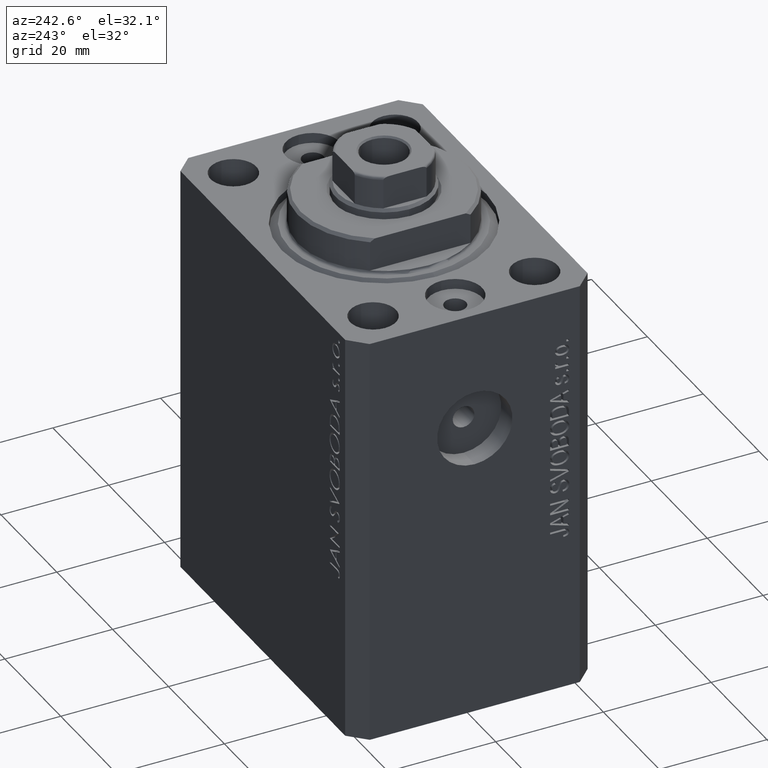
[diagram: clean part render]
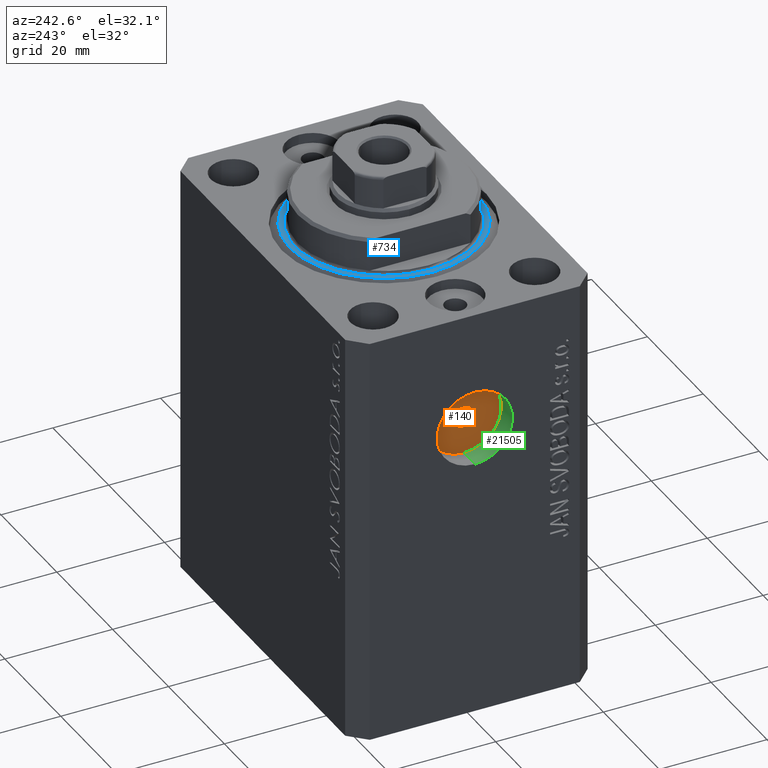
[diagram: same view with three faces highlighted in distinct colors, each labeled with its STEP entity id]
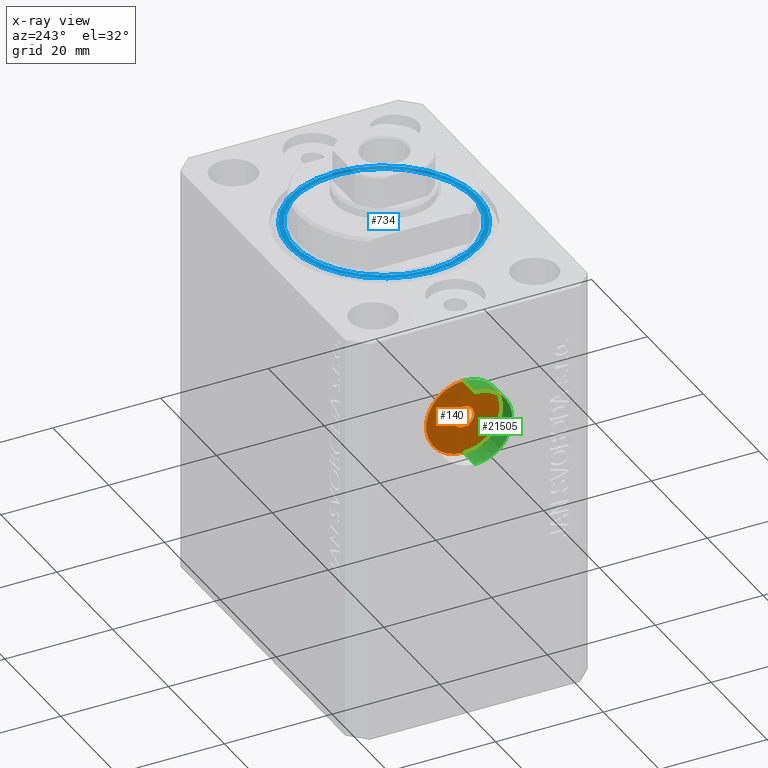
[diagram: x-ray of the same camera — body ghosted, the three highlighted faces saturated]
A machine part, auxiliary view with three faces highlighted in distinct colors.
The next image is the same camera in x-ray (body ghosted, the three faces saturated) — at least one of them is partly hidden behind the body in this view.
Their STEP definitions:

[orange] entity #140 — the highlighted planar face has unit normal (-1, 0, 0).
#140 = ADVANCED_FACE ( 'NONE', ( #27877, #10974 ), #24511, .T. ) ;
#4254 = DIRECTION ( 'NONE',  ( -1.000000000000000000, 0.000000000000000000, 0.000000000000000000 ) ) ;
#4823 = DIRECTION ( 'NONE',  ( 0.000000000000000000, 0.000000000000000000, 1.000000000000000000 ) ) ;
#5187 = DIRECTION ( 'NONE',  ( 0.000000000000000000, 0.000000000000000000, 1.000000000000000000 ) ) ;
#5305 = EDGE_CURVE ( 'NONE', #6242, #37633, #43434, .T. ) ;
#5861 = CARTESIAN_POINT ( 'NONE',  ( -28.49999999999650413, 0.000000000000000000, -22.00000000000000000 ) ) ;
#6242 = VERTEX_POINT ( 'NONE', #22571 ) ;
#6794 = EDGE_LOOP ( 'NONE', ( #33776, #37909 ) ) ;
#7648 = EDGE_LOOP ( 'NONE', ( #23320, #25348 ) ) ;
#7690 = EDGE_CURVE ( 'NONE', #40046, #35507, #10095, .T. ) ;
#10095 = CIRCLE ( 'NONE', #27370, 6.999999999999999112 ) ;
#10311 = CIRCLE ( 'NONE', #16064, 1.999999999999998224 ) ;
#10746 = CIRCLE ( 'NONE', #39476, 6.999999999999999112 ) ;
#10974 = FACE_OUTER_BOUND ( 'NONE', #7648, .T. ) ;
#14039 = CARTESIAN_POINT ( 'NONE',  ( -28.49999999999650413, 0.000000000000000000, -22.00000000000000000 ) ) ;
#16064 = AXIS2_PLACEMENT_3D ( 'NONE', #25510, #43025, #4823 ) ;
#17521 = DIRECTION ( 'NONE',  ( 0.000000000000000000, 0.000000000000000000, 1.000000000000000000 ) ) ;
#18281 = EDGE_CURVE ( 'NONE', #37633, #6242, #10311, .T. ) ;
#18667 = DIRECTION ( 'NONE',  ( -1.000000000000000000, 0.000000000000000000, 0.000000000000000000 ) ) ;
#21603 = DIRECTION ( 'NONE',  ( 0.000000000000000000, 0.000000000000000000, 1.000000000000000000 ) ) ;
#22571 = CARTESIAN_POINT ( 'NONE',  ( -28.49999999999650413, 0.000000000000000000, -20.00000000000000000 ) ) ;
#23320 = ORIENTED_EDGE ( 'NONE', *, *, #7690, .T. ) ;
#24511 = PLANE ( 'NONE',  #34581 ) ;
#24626 = DIRECTION ( 'NONE',  ( 0.000000000000000000, 0.000000000000000000, 1.000000000000000000 ) ) ;
#25348 = ORIENTED_EDGE ( 'NONE', *, *, #44250, .T. ) ;
#25510 = CARTESIAN_POINT ( 'NONE',  ( -28.49999999999650413, 0.000000000000000000, -22.00000000000000000 ) ) ;
#27370 = AXIS2_PLACEMENT_3D ( 'NONE', #14039, #34742, #24626 ) ;
#27877 = FACE_BOUND ( 'NONE', #6794, .T. ) ;
#28775 = CARTESIAN_POINT ( 'NONE',  ( -28.49999999999650413, 2.449293598294706414E-16, -23.99999999999999645 ) ) ;
#33776 = ORIENTED_EDGE ( 'NONE', *, *, #5305, .F. ) ;
#34581 = AXIS2_PLACEMENT_3D ( 'NONE', #41576, #4254, #17521 ) ;
#34742 = DIRECTION ( 'NONE',  ( -1.000000000000000000, 0.000000000000000000, 0.000000000000000000 ) ) ;
#34912 = CARTESIAN_POINT ( 'NONE',  ( -28.49999999999650413, 0.000000000000000000, -15.00000000000000000 ) ) ;
#35507 = VERTEX_POINT ( 'NONE', #41631 ) ;
#36244 = AXIS2_PLACEMENT_3D ( 'NONE', #5861, #36435, #5187 ) ;
#36435 = DIRECTION ( 'NONE',  ( -1.000000000000000000, 0.000000000000000000, 0.000000000000000000 ) ) ;
#37633 = VERTEX_POINT ( 'NONE', #28775 ) ;
#37909 = ORIENTED_EDGE ( 'NONE', *, *, #18281, .F. ) ;
#39476 = AXIS2_PLACEMENT_3D ( 'NONE', #43158, #18667, #21603 ) ;
#40046 = VERTEX_POINT ( 'NONE', #34912 ) ;
#41576 = CARTESIAN_POINT ( 'NONE',  ( -28.49999999999650413, 0.000000000000000000, -22.00000000000000000 ) ) ;
#41631 = CARTESIAN_POINT ( 'NONE',  ( -28.49999999999650413, 8.572527594031474176E-16, -28.99999999999999645 ) ) ;
#43025 = DIRECTION ( 'NONE',  ( -1.000000000000000000, 0.000000000000000000, 0.000000000000000000 ) ) ;
#43158 = CARTESIAN_POINT ( 'NONE',  ( -28.49999999999650413, 0.000000000000000000, -22.00000000000000000 ) ) ;
#43434 = CIRCLE ( 'NONE', #36244, 1.999999999999998224 ) ;
#44250 = EDGE_CURVE ( 'NONE', #35507, #40046, #10746, .T. ) ;

[blue] entity #734 — the highlighted planar face has unit normal (0, 0, -1).
#641 = VERTEX_POINT ( 'NONE', #23910 ) ;
#734 = ADVANCED_FACE ( 'NONE', ( #41422, #24349 ), #38053, .F. ) ;
#2185 = CIRCLE ( 'NONE', #25166, 16.50000000000000000 ) ;
#2579 = EDGE_CURVE ( 'NONE', #35748, #15079, #41100, .T. ) ;
#3311 = AXIS2_PLACEMENT_3D ( 'NONE', #29982, #12852, #9483 ) ;
#4361 = ORIENTED_EDGE ( 'NONE', *, *, #2579, .T. ) ;
#4571 = ORIENTED_EDGE ( 'NONE', *, *, #13773, .T. ) ;
#6578 = EDGE_CURVE ( 'NONE', #15079, #35748, #2185, .T. ) ;
#6601 = AXIS2_PLACEMENT_3D ( 'NONE', #7245, #22052, #25214 ) ;
#6629 = EDGE_LOOP ( 'NONE', ( #4361, #39993 ) ) ;
#7245 = CARTESIAN_POINT ( 'NONE',  ( 0.000000000000000000, 0.000000000000000000, 0.000000000000000000 ) ) ;
#7794 = CARTESIAN_POINT ( 'NONE',  ( 0.000000000000000000, 0.000000000000000000, 0.000000000000000000 ) ) ;
#8051 = AXIS2_PLACEMENT_3D ( 'NONE', #17108, #24100, #23436 ) ;
#9150 = CARTESIAN_POINT ( 'NONE',  ( 0.000000000000000000, 0.000000000000000000, 0.000000000000000000 ) ) ;
#9393 = VERTEX_POINT ( 'NONE', #13878 ) ;
#9483 = DIRECTION ( 'NONE',  ( 1.000000000000000000, 0.000000000000000000, 0.000000000000000000 ) ) ;
#9538 = EDGE_LOOP ( 'NONE', ( #4571, #43031 ) ) ;
#9553 = AXIS2_PLACEMENT_3D ( 'NONE', #9150, #36596, #43785 ) ;
#12852 = DIRECTION ( 'NONE',  ( -0.000000000000000000, -0.000000000000000000, -1.000000000000000000 ) ) ;
#13773 = EDGE_CURVE ( 'NONE', #641, #9393, #28955, .T. ) ;
#13878 = CARTESIAN_POINT ( 'NONE',  ( -17.49999999999999289, 2.234980408443919215E-15, 0.000000000000000000 ) ) ;
#15079 = VERTEX_POINT ( 'NONE', #20626 ) ;
#17108 = CARTESIAN_POINT ( 'NONE',  ( 0.000000000000000000, 0.000000000000000000, 0.000000000000000000 ) ) ;
#17923 = DIRECTION ( 'NONE',  ( 1.000000000000000000, 0.000000000000000000, 0.000000000000000000 ) ) ;
#20626 = CARTESIAN_POINT ( 'NONE',  ( -16.50000000000000000, 2.020667218593133100E-15, 2.168404344971008868E-16 ) ) ;
#22052 = DIRECTION ( 'NONE',  ( 0.000000000000000000, 0.000000000000000000, 1.000000000000000000 ) ) ;
#23347 = EDGE_CURVE ( 'NONE', #9393, #641, #23415, .T. ) ;
#23415 = CIRCLE ( 'NONE', #3311, 17.49999999999999289 ) ;
#23436 = DIRECTION ( 'NONE',  ( 1.000000000000000000, 0.000000000000000000, 0.000000000000000000 ) ) ;
#23910 = CARTESIAN_POINT ( 'NONE',  ( 17.49999999999999289, 0.000000000000000000, 0.000000000000000000 ) ) ;
#24100 = DIRECTION ( 'NONE',  ( 0.000000000000000000, 0.000000000000000000, 1.000000000000000000 ) ) ;
#24349 = FACE_OUTER_BOUND ( 'NONE', #9538, .T. ) ;
#25166 = AXIS2_PLACEMENT_3D ( 'NONE', #7794, #28937, #17923 ) ;
#25214 = DIRECTION ( 'NONE',  ( 1.000000000000000000, 0.000000000000000000, -0.000000000000000000 ) ) ;
#28937 = DIRECTION ( 'NONE',  ( 0.000000000000000000, 0.000000000000000000, 1.000000000000000000 ) ) ;
#28955 = CIRCLE ( 'NONE', #9553, 17.49999999999999289 ) ;
#29982 = CARTESIAN_POINT ( 'NONE',  ( 0.000000000000000000, 0.000000000000000000, 0.000000000000000000 ) ) ;
#35748 = VERTEX_POINT ( 'NONE', #43396 ) ;
#36596 = DIRECTION ( 'NONE',  ( -0.000000000000000000, -0.000000000000000000, -1.000000000000000000 ) ) ;
#38053 = PLANE ( 'NONE',  #6601 ) ;
#39993 = ORIENTED_EDGE ( 'NONE', *, *, #6578, .T. ) ;
#41100 = CIRCLE ( 'NONE', #8051, 16.50000000000000000 ) ;
#41422 = FACE_BOUND ( 'NONE', #6629, .T. ) ;
#43031 = ORIENTED_EDGE ( 'NONE', *, *, #23347, .T. ) ;
#43396 = CARTESIAN_POINT ( 'NONE',  ( 16.50000000000000000, 0.000000000000000000, 2.168404344971008868E-16 ) ) ;
#43785 = DIRECTION ( 'NONE',  ( 1.000000000000000000, 0.000000000000000000, 0.000000000000000000 ) ) ;

[green] entity #21505 — the highlighted cylindrical surface (partial cylindrical patch) has radius 7 mm, axis along (-1, -0, -0).
#7487 = ORIENTED_EDGE ( 'NONE', *, *, #12276, .F. ) ;
#10746 = CIRCLE ( 'NONE', #39476, 6.999999999999999112 ) ;
#11874 = DIRECTION ( 'NONE',  ( 0.000000000000000000, 0.000000000000000000, 1.000000000000000000 ) ) ;
#12276 = EDGE_CURVE ( 'NONE', #40046, #36806, #29232, .T. ) ;
#12519 = CARTESIAN_POINT ( 'NONE',  ( -28.49999999999650413, 8.572527594031473190E-16, -28.99999999999999645 ) ) ;
#12944 = ORIENTED_EDGE ( 'NONE', *, *, #44250, .F. ) ;
#13606 = AXIS2_PLACEMENT_3D ( 'NONE', #15249, #42693, #11874 ) ;
#14378 = FACE_OUTER_BOUND ( 'NONE', #42461, .T. ) ;
#15249 = CARTESIAN_POINT ( 'NONE',  ( -32.49999999999650413, 0.000000000000000000, -22.00000000000000000 ) ) ;
#15488 = CARTESIAN_POINT ( 'NONE',  ( -28.49999999999650413, 0.000000000000000000, -15.00000000000000000 ) ) ;
#16155 = EDGE_CURVE ( 'NONE', #35507, #23982, #29652, .T. ) ;
#16913 = AXIS2_PLACEMENT_3D ( 'NONE', #41821, #26518, #33492 ) ;
#18542 = ORIENTED_EDGE ( 'NONE', *, *, #42299, .T. ) ;
#18667 = DIRECTION ( 'NONE',  ( -1.000000000000000000, 0.000000000000000000, 0.000000000000000000 ) ) ;
#19937 = CARTESIAN_POINT ( 'NONE',  ( -32.49999999999650413, 0.000000000000000000, -15.00000000000000000 ) ) ;
#21505 = ADVANCED_FACE ( 'NONE', ( #14378 ), #28123, .F. ) ;
#21603 = DIRECTION ( 'NONE',  ( 0.000000000000000000, 0.000000000000000000, 1.000000000000000000 ) ) ;
#23982 = VERTEX_POINT ( 'NONE', #32235 ) ;
#26518 = DIRECTION ( 'NONE',  ( -1.000000000000000000, -0.000000000000000000, -0.000000000000000000 ) ) ;
#28123 = CYLINDRICAL_SURFACE ( 'NONE', #16913, 6.999999999999999112 ) ;
#28575 = DIRECTION ( 'NONE',  ( -1.000000000000000000, -0.000000000000000000, -0.000000000000000000 ) ) ;
#29232 = LINE ( 'NONE', #15488, #38265 ) ;
#29652 = LINE ( 'NONE', #12519, #40477 ) ;
#32235 = CARTESIAN_POINT ( 'NONE',  ( -32.49999999999650413, 8.572527594031474176E-16, -28.99999999999999645 ) ) ;
#33492 = DIRECTION ( 'NONE',  ( 0.000000000000000000, 0.000000000000000000, 1.000000000000000000 ) ) ;
#34912 = CARTESIAN_POINT ( 'NONE',  ( -28.49999999999650413, 0.000000000000000000, -15.00000000000000000 ) ) ;
#35160 = CIRCLE ( 'NONE', #13606, 6.999999999999999112 ) ;
#35507 = VERTEX_POINT ( 'NONE', #41631 ) ;
#36806 = VERTEX_POINT ( 'NONE', #19937 ) ;
#37235 = ORIENTED_EDGE ( 'NONE', *, *, #16155, .T. ) ;
#38265 = VECTOR ( 'NONE', #28575, 1000.000000000000000 ) ;
#39476 = AXIS2_PLACEMENT_3D ( 'NONE', #43158, #18667, #21603 ) ;
#40046 = VERTEX_POINT ( 'NONE', #34912 ) ;
#40477 = VECTOR ( 'NONE', #42668, 1000.000000000000000 ) ;
#41631 = CARTESIAN_POINT ( 'NONE',  ( -28.49999999999650413, 8.572527594031474176E-16, -28.99999999999999645 ) ) ;
#41821 = CARTESIAN_POINT ( 'NONE',  ( -28.49999999999650413, 0.000000000000000000, -22.00000000000000000 ) ) ;
#42299 = EDGE_CURVE ( 'NONE', #23982, #36806, #35160, .T. ) ;
#42461 = EDGE_LOOP ( 'NONE', ( #12944, #37235, #18542, #7487 ) ) ;
#42668 = DIRECTION ( 'NONE',  ( -1.000000000000000000, -0.000000000000000000, -0.000000000000000000 ) ) ;
#42693 = DIRECTION ( 'NONE',  ( -1.000000000000000000, 0.000000000000000000, 0.000000000000000000 ) ) ;
#43158 = CARTESIAN_POINT ( 'NONE',  ( -28.49999999999650413, 0.000000000000000000, -22.00000000000000000 ) ) ;
#44250 = EDGE_CURVE ( 'NONE', #35507, #40046, #10746, .T. ) ;